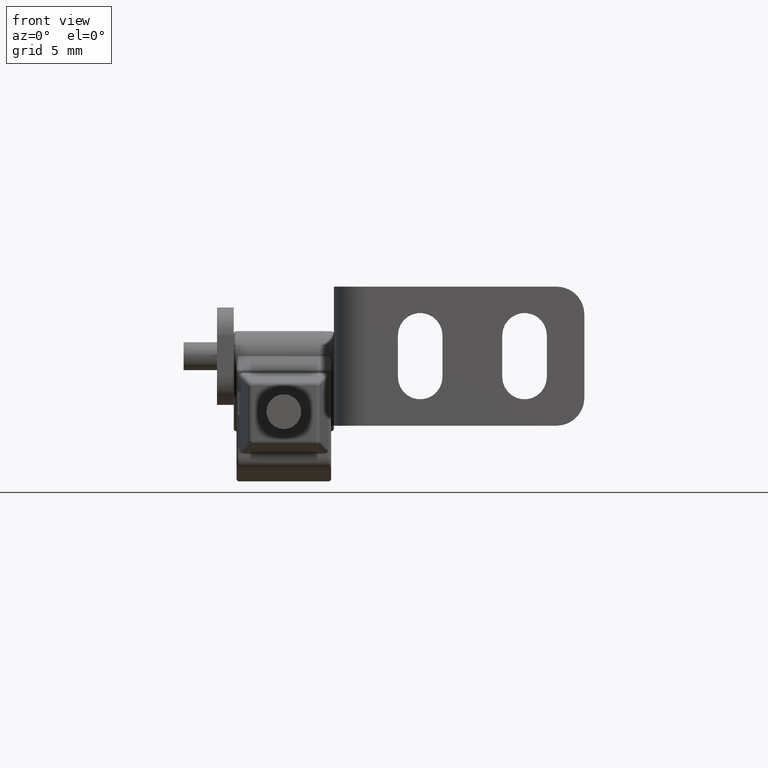
[diagram: clean part render]
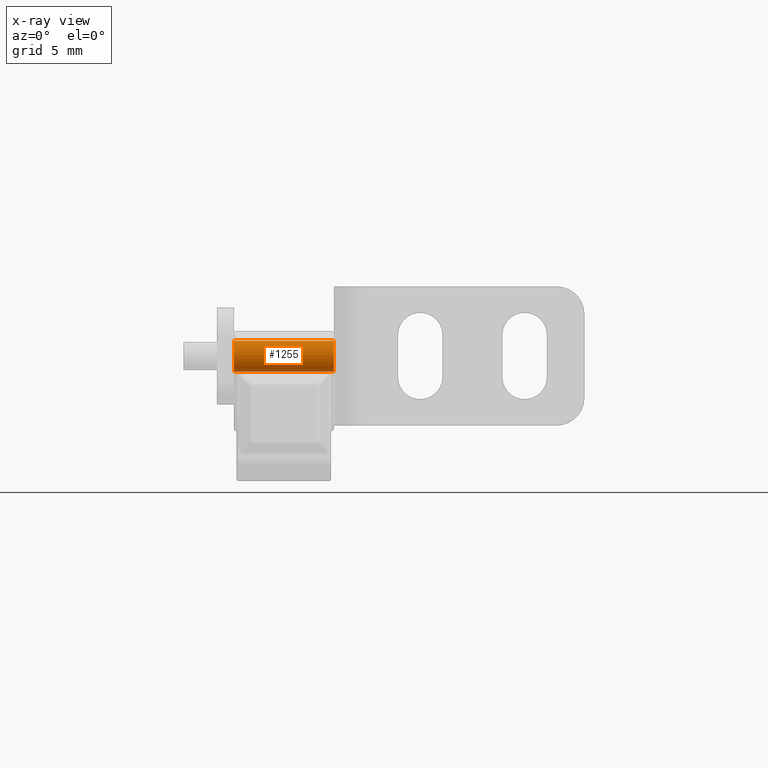
[diagram: x-ray — body ghosted, one internal face saturated and labeled with its STEP entity id]
A machine part, front view, then the same camera in x-ray: the body is ghosted and one INTERNAL B-rep face — a face not visible from any outside direction — is saturated and labeled: STEP entity #1255.
In plain terms, the highlighted cylindrical surface (edge-blend (fillet) strip) has radius 1.1 mm, axis along (-1, -0, 0).
Its self-contained STEP definition (entity closure, byte-faithful):
#958 = DIRECTION ( 'NONE',  ( 1.000000000000000000, 1.045014142154789896E-16, 0.000000000000000000 ) ) ;
#1026 = DIRECTION ( 'NONE',  ( 0.000000000000000000, 0.000000000000000000, -1.000000000000000000 ) ) ;
#1255 = ADVANCED_FACE ( 'NONE', ( #7593 ), #15294, .F. ) ;
#1561 = CARTESIAN_POINT ( 'NONE',  ( 3.599999999999999201, -3.459455608560475515, 3.094906890293576573 ) ) ;
#2062 = ORIENTED_EDGE ( 'NONE', *, *, #17018, .T. ) ;
#2709 = EDGE_CURVE ( 'NONE', #5612, #7360, #15005, .T. ) ;
#2858 = DIRECTION ( 'NONE',  ( 1.000000000000000000, 1.045014142154789896E-16, 1.232595164407829988E-32 ) ) ;
#2949 = CARTESIAN_POINT ( 'NONE',  ( 3.599999999999999201, -3.555326925582895203, 3.099092722392671195 ) ) ;
#3885 = CARTESIAN_POINT ( 'NONE',  ( -3.600000000000005862, -3.555326925582895203, 1.999092722392667554 ) ) ;
#4097 = DIRECTION ( 'NONE',  ( 1.000000000000000000, 1.045014142154789896E-16, 0.000000000000000000 ) ) ;
#5230 = VECTOR ( 'NONE', #2858, 1000.000000000000000 ) ;
#5247 = AXIS2_PLACEMENT_3D ( 'NONE', #11627, #958, #13299 ) ;
#5374 = DIRECTION ( 'NONE',  ( -1.000000000000000000, -1.045014142154789896E-16, -1.232595164407829988E-32 ) ) ;
#5612 = VERTEX_POINT ( 'NONE', #7395 ) ;
#7360 = VERTEX_POINT ( 'NONE', #2949 ) ;
#7395 = CARTESIAN_POINT ( 'NONE',  ( -3.600000000000005862, -3.555326925582895203, 3.099092722392671195 ) ) ;
#7593 = FACE_OUTER_BOUND ( 'NONE', #17497, .T. ) ;
#7790 = DIRECTION ( 'NONE',  ( -1.000000000000000000, -1.045014142154789896E-16, 0.000000000000000000 ) ) ;
#9362 = VECTOR ( 'NONE', #5374, 1000.000000000000000 ) ;
#9542 = ORIENTED_EDGE ( 'NONE', *, *, #16223, .T. ) ;
#10373 = CARTESIAN_POINT ( 'NONE',  ( 3.599999999999999201, -3.555326925582895203, 3.099092722392671195 ) ) ;
#11371 = CARTESIAN_POINT ( 'NONE',  ( 3.599999999999999201, -3.459455608560475515, 3.094906890293576573 ) ) ;
#11627 = CARTESIAN_POINT ( 'NONE',  ( 3.599999999999999201, -3.555326925582895203, 1.999092722392667554 ) ) ;
#12955 = LINE ( 'NONE', #11371, #9362 ) ;
#13005 = ORIENTED_EDGE ( 'NONE', *, *, #15444, .F. ) ;
#13111 = CIRCLE ( 'NONE', #5247, 1.100000000000000089 ) ;
#13299 = DIRECTION ( 'NONE',  ( 0.000000000000000000, 0.000000000000000000, -1.000000000000000000 ) ) ;
#14414 = AXIS2_PLACEMENT_3D ( 'NONE', #17699, #7790, #18356 ) ;
#15005 = LINE ( 'NONE', #10373, #5230 ) ;
#15294 = CYLINDRICAL_SURFACE ( 'NONE', #14414, 1.100000000000000311 ) ;
#15319 = CIRCLE ( 'NONE', #16255, 1.100000000000000089 ) ;
#15444 = EDGE_CURVE ( 'NONE', #5612, #18933, #15319, .T. ) ;
#16223 = EDGE_CURVE ( 'NONE', #7360, #17532, #13111, .T. ) ;
#16255 = AXIS2_PLACEMENT_3D ( 'NONE', #3885, #4097, #1026 ) ;
#17018 = EDGE_CURVE ( 'NONE', #17532, #18933, #12955, .T. ) ;
#17091 = CARTESIAN_POINT ( 'NONE',  ( -3.600000000000005862, -3.459455608560475515, 3.094906890293576573 ) ) ;
#17497 = EDGE_LOOP ( 'NONE', ( #13005, #18350, #9542, #2062 ) ) ;
#17532 = VERTEX_POINT ( 'NONE', #1561 ) ;
#17699 = CARTESIAN_POINT ( 'NONE',  ( 3.599999999999999201, -3.555326925582895203, 1.999092722392667554 ) ) ;
#18350 = ORIENTED_EDGE ( 'NONE', *, *, #2709, .T. ) ;
#18356 = DIRECTION ( 'NONE',  ( 0.000000000000000000, 0.000000000000000000, 1.000000000000000000 ) ) ;
#18933 = VERTEX_POINT ( 'NONE', #17091 ) ;